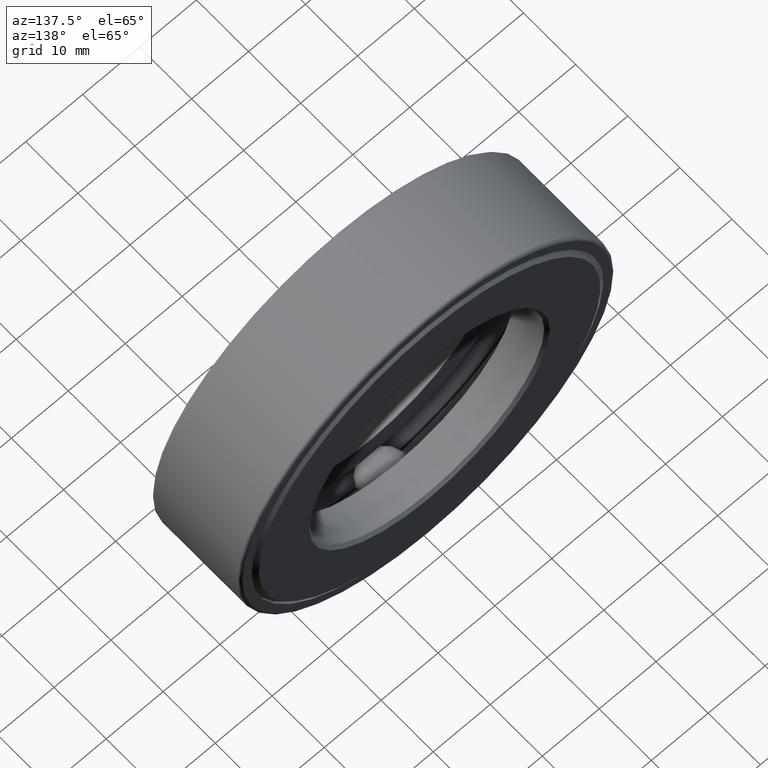
[diagram: clean part render]
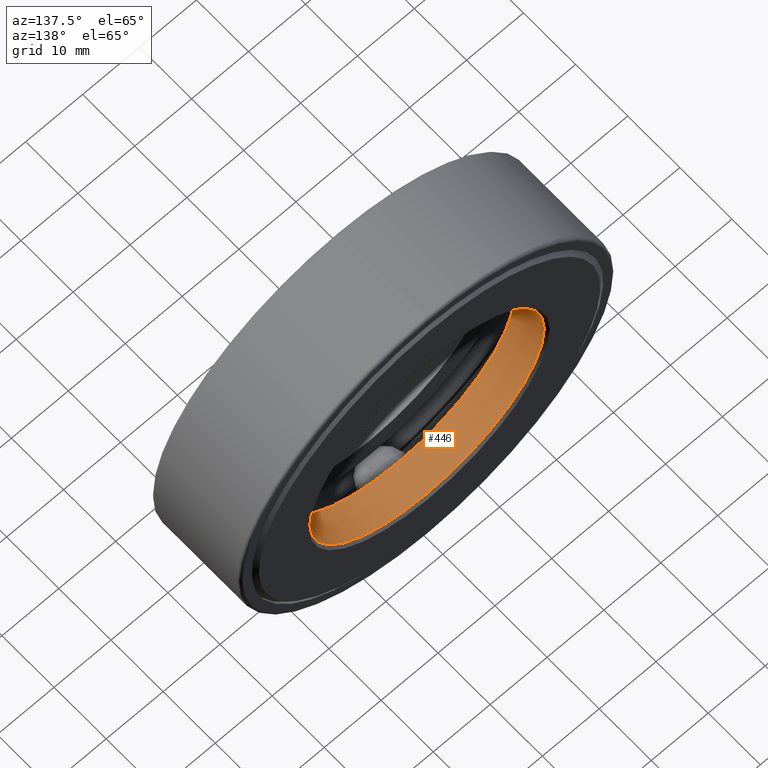
[diagram: same view with one face highlighted and labeled with its STEP entity id]
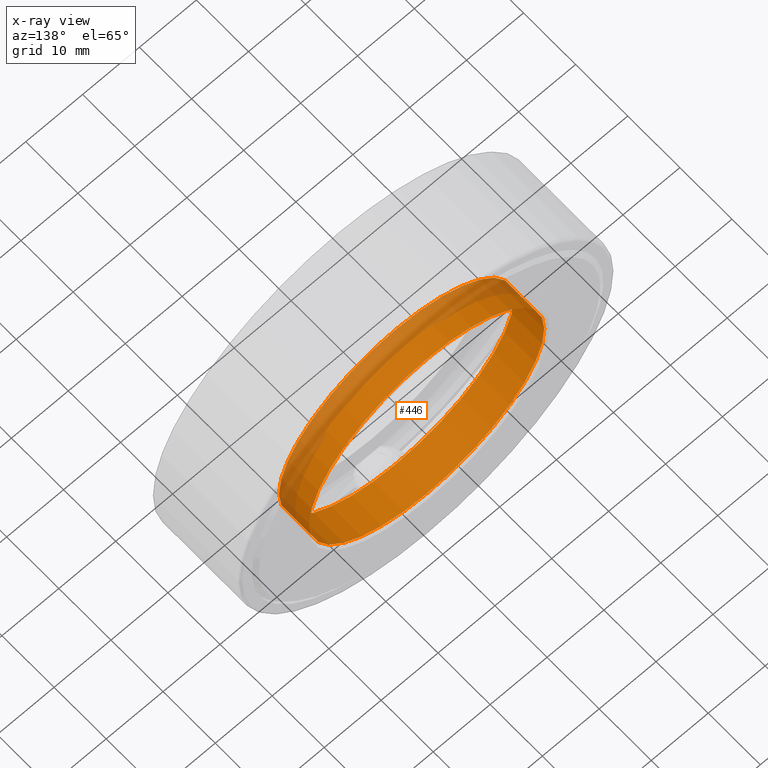
[diagram: x-ray of the same camera — body ghosted, the highlighted face saturated]
A machine part, auxiliary view. The second image highlights one B-rep face of the part: STEP entity #446.
The next image is the same camera in x-ray: the body ghosted, the highlighted face saturated — about 24% of this face is hidden behind the body in this view.
In plain terms, the highlighted cylindrical surface (bore or boss wall) has radius 20.6375 mm, axis along (-0, 1, -0).
Its self-contained STEP definition (entity closure, byte-faithful):
#4 = VERTEX_POINT ( 'NONE', #153 ) ;
#12 = ORIENTED_EDGE ( 'NONE', *, *, #439, .F. ) ;
#14 = ORIENTED_EDGE ( 'NONE', *, *, #286, .T. ) ;
#51 = CARTESIAN_POINT ( 'NONE',  ( 0.0000000000000000000, 0.0000000000000000000, 0.0000000000000000000 ) ) ;
#134 = FACE_OUTER_BOUND ( 'NONE', #237, .T. ) ;
#153 = CARTESIAN_POINT ( 'NONE',  ( 0.0000000000000000000, 0.4375000000000000000, 0.8125000000000001100 ) ) ;
#167 = AXIS2_PLACEMENT_3D ( 'NONE', #525, #242, #568 ) ;
#183 = CARTESIAN_POINT ( 'NONE',  ( 0.0000000000000000000, 0.6674999999999997600, 0.0000000000000000000 ) ) ;
#187 = DIRECTION ( 'NONE',  ( 0.0000000000000000000, 0.0000000000000000000, 1.000000000000000000 ) ) ;
#196 = DIRECTION ( 'NONE',  ( 0.0000000000000000000, 0.0000000000000000000, 1.000000000000000000 ) ) ;
#198 = FACE_OUTER_BOUND ( 'NONE', #483, .T. ) ;
#210 = CARTESIAN_POINT ( 'NONE',  ( 0.0000000000000000000, 0.6674999999999997600, 0.8125000000000001100 ) ) ;
#237 = EDGE_LOOP ( 'NONE', ( #12 ) ) ;
#242 = DIRECTION ( 'NONE',  ( -0.0000000000000000000, 1.000000000000000000, -0.0000000000000000000 ) ) ;
#258 = CIRCLE ( 'NONE', #167, 0.8125000000000001100 ) ;
#271 = AXIS2_PLACEMENT_3D ( 'NONE', #183, #283, #187 ) ;
#283 = DIRECTION ( 'NONE',  ( -0.0000000000000000000, 1.000000000000000000, -0.0000000000000000000 ) ) ;
#286 = EDGE_CURVE ( 'NONE', #320, #320, #472, .T. ) ;
#291 = DIRECTION ( 'NONE',  ( -0.0000000000000000000, 1.000000000000000000, -0.0000000000000000000 ) ) ;
#320 = VERTEX_POINT ( 'NONE', #210 ) ;
#379 = AXIS2_PLACEMENT_3D ( 'NONE', #51, #291, #196 ) ;
#439 = EDGE_CURVE ( 'NONE', #4, #4, #258, .T. ) ;
#445 = CYLINDRICAL_SURFACE ( 'NONE', #379, 0.8125000000000001100 ) ;
#446 = ADVANCED_FACE ( 'NONE', ( #198, #134 ), #445, .F. ) ;
#472 = CIRCLE ( 'NONE', #271, 0.8125000000000001100 ) ;
#483 = EDGE_LOOP ( 'NONE', ( #14 ) ) ;
#525 = CARTESIAN_POINT ( 'NONE',  ( 0.0000000000000000000, 0.4375000000000000000, 0.0000000000000000000 ) ) ;
#568 = DIRECTION ( 'NONE',  ( 0.0000000000000000000, 0.0000000000000000000, 1.000000000000000000 ) ) ;